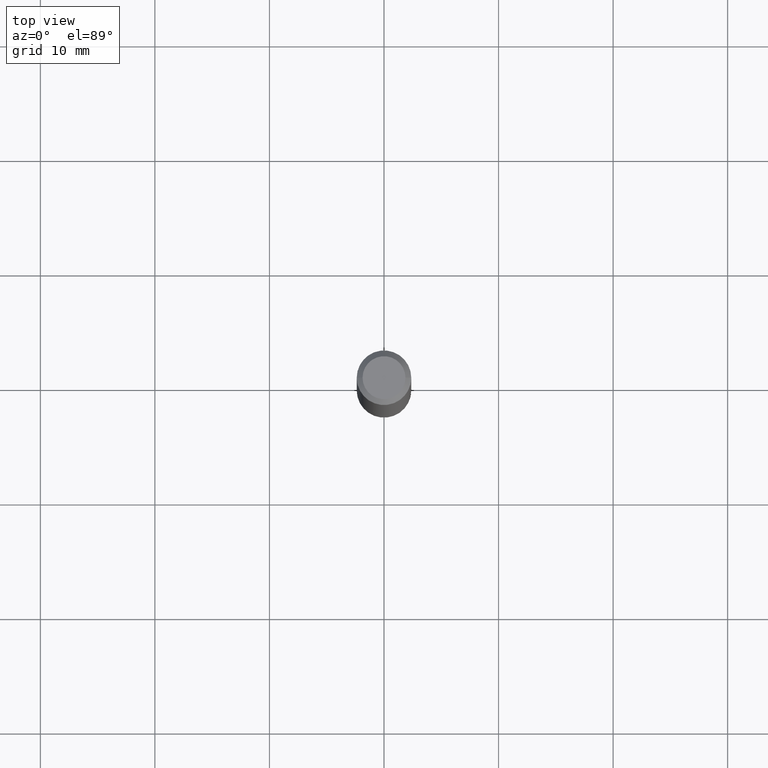
[diagram: clean part render]
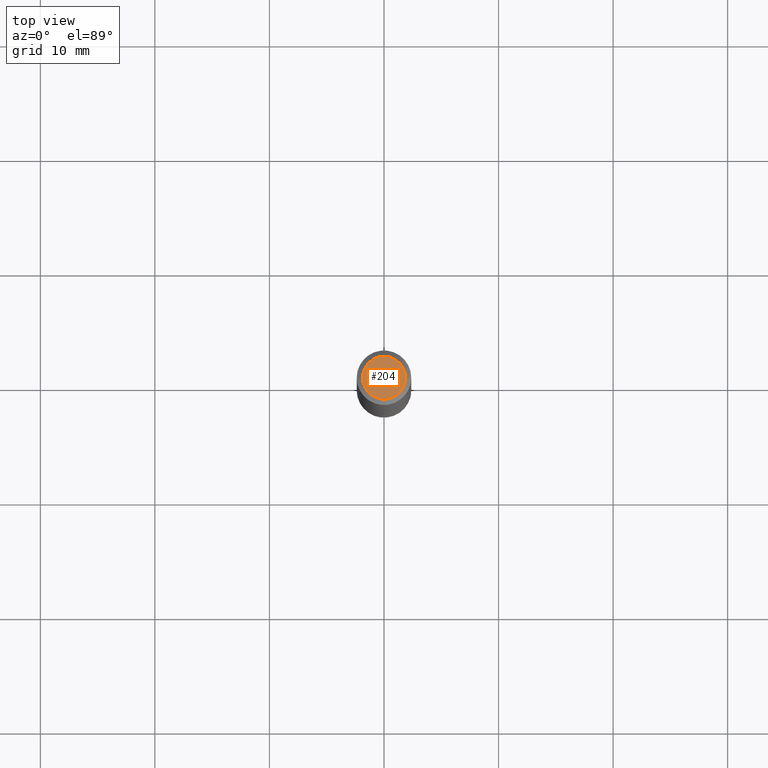
[diagram: same view with one face highlighted and labeled with its STEP entity id]
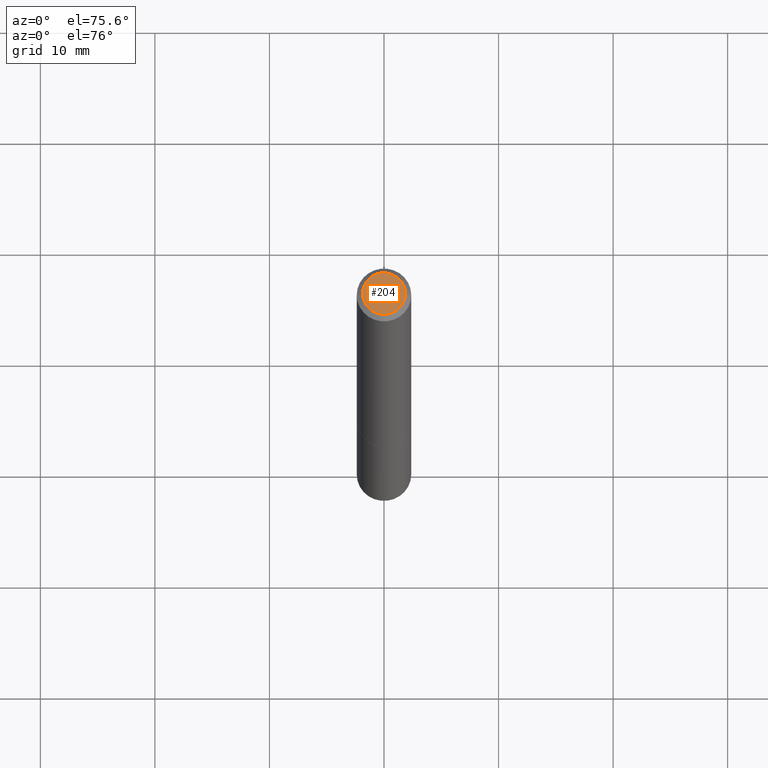
[diagram: same view with one face highlighted and labeled with its STEP entity id]
A machine part, top view. The second image highlights one B-rep face of the part: STEP entity #204.
A second angle (auxiliary view) of the same face is appended — the face is thin or edge-on in the first view.
In plain terms, the highlighted planar face has unit normal (0, -0, -1).
Its self-contained STEP definition (entity closure, byte-faithful):
#26 = CIRCLE ( 'NONE', #378, 0.07374999999999978795 ) ;
#29 = VERTEX_POINT ( 'NONE', #68 ) ;
#48 = VERTEX_POINT ( 'NONE', #170 ) ;
#58 = AXIS2_PLACEMENT_3D ( 'NONE', #389, #127, #334 ) ;
#63 = ORIENTED_EDGE ( 'NONE', *, *, #349, .T. ) ;
#68 = CARTESIAN_POINT ( 'NONE',  ( -0.07374999999999978795, 5.499083108677917680E-16, -3.723527850031183460E-30 ) ) ;
#81 = CARTESIAN_POINT ( 'NONE',  ( 0.000000000000000000, 0.000000000000000000, 0.000000000000000000 ) ) ;
#119 = PLANE ( 'NONE',  #353 ) ;
#126 = EDGE_CURVE ( 'NONE', #48, #29, #26, .T. ) ;
#127 = DIRECTION ( 'NONE',  ( -2.445468806185136597E-29, 3.491481338843145583E-15, 1.000000000000000000 ) ) ;
#170 = CARTESIAN_POINT ( 'NONE',  ( 0.07374999999999978795, -6.094815207017957253E-16, 3.931526600461595245E-30 ) ) ;
#204 = ADVANCED_FACE ( 'NONE', ( #262 ), #119, .F. ) ;
#205 = DIRECTION ( 'NONE',  ( 2.438088387897960049E-29, -3.491481338843145188E-15, -1.000000000000000000 ) ) ;
#207 = DIRECTION ( 'NONE',  ( 1.000000000000000000, -6.982962677686266711E-15, 4.876176775795936914E-29 ) ) ;
#211 = DIRECTION ( 'NONE',  ( -2.445468806185136597E-29, 3.491481338843145583E-15, 1.000000000000000000 ) ) ;
#262 = FACE_OUTER_BOUND ( 'NONE', #279, .T. ) ;
#279 = EDGE_LOOP ( 'NONE', ( #63, #304 ) ) ;
#296 = CIRCLE ( 'NONE', #58, 0.07374999999999978795 ) ;
#304 = ORIENTED_EDGE ( 'NONE', *, *, #126, .T. ) ;
#319 = DIRECTION ( 'NONE',  ( -1.000000000000000000, 6.982962677686265922E-15, -4.876176775795935793E-29 ) ) ;
#334 = DIRECTION ( 'NONE',  ( 1.000000000000000000, -6.982962677686266711E-15, 4.876176775795936914E-29 ) ) ;
#349 = EDGE_CURVE ( 'NONE', #29, #48, #296, .T. ) ;
#353 = AXIS2_PLACEMENT_3D ( 'NONE', #381, #205, #319 ) ;
#378 = AXIS2_PLACEMENT_3D ( 'NONE', #81, #211, #207 ) ;
#381 = CARTESIAN_POINT ( 'NONE',  ( 5.149934974793607105E-16, 0.07374999999999978795, -2.574967487396812920E-16 ) ) ;
#389 = CARTESIAN_POINT ( 'NONE',  ( 0.000000000000000000, 0.000000000000000000, 0.000000000000000000 ) ) ;